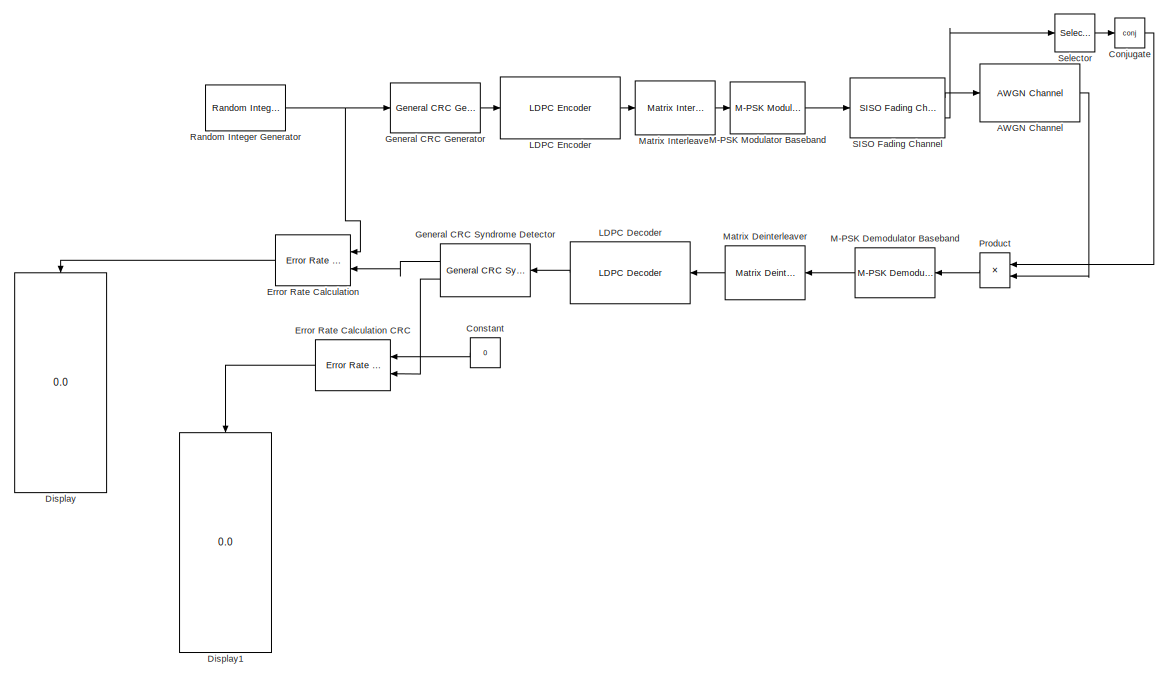
[diagram: root canvas - part 1/2, left side, full height]
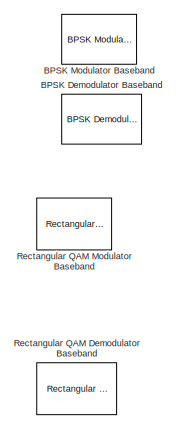
[diagram: root canvas - part 2/2, middle right region]
MODEL slx_5b4a1372acab
KIND model
CONFIG AbsTol = auto
CONFIG EnableMultiTasking = off
CONFIG FixedStep = auto
CONFIG MaxStep = auto
CONFIG MinStep = auto
CONFIG RelTol = 1e-3
CONFIG SampleTimeConstraint = Unconstrained
CONFIG Solver = FixedStepDiscrete
CONFIG SolverName = FixedStepDiscrete
CONFIG StartTime = 0.0
CONFIG StopTime = 20
BLOCK [Reference] AWGN Channel  REF=commchan3/AWGN
Channel
  Ports = [1, 1]
  SourceBlock = commchan3/AWGN\nChannel
  SourceProductBaseCode = CM
  SourceProductName = Communications System Toolbox
  SourceType = AWGN Channel
  UserDataPersistent = on
BLOCK [Reference] BPSK Demodulator Baseband  REF=commdigbbndpm3/BPSK
Demodulator
Baseband
  Commented = on
  Ports = [1, 1]
  SourceBlock = commdigbbndpm3/BPSK\nDemodulator\nBaseband
  SourceProductBaseCode = CM
  SourceProductName = Communications System Toolbox
  SourceType = BPSK Demodulator Baseband
BLOCK [Reference] BPSK Modulator Baseband  REF=commdigbbndpm3/BPSK
Modulator
Baseband
  Commented = on
  Ports = [1, 1]
  SourceBlock = commdigbbndpm3/BPSK\nModulator\nBaseband
  SourceProductBaseCode = CM
  SourceProductName = Communications System Toolbox
  SourceType = BPSK Modulator Baseband
BLOCK [Math] Conjugate
  Operator = conj
  Ports = [1, 1]
  RndMeth = Zero
BLOCK [Constant] Constant
  Value = 0
BLOCK [Display] Display
  Decimation = 1
  Ports = [1]
BLOCK [Display] Display1
  Decimation = 1
  Ports = [1]
BLOCK [Reference] Error Rate Calculation  REF=commsink2/Error Rate
Calculation
  Ports = [2, 1]
  SourceBlock = commsink2/Error Rate\nCalculation
  SourceProductBaseCode = CM
  SourceProductName = Communications System Toolbox
  SourceType = Error Rate Calculation
BLOCK [Reference] Error Rate Calculation CRC  REF=commsink2/Error Rate
Calculation
  Ports = [2, 1]
  SourceBlock = commsink2/Error Rate\nCalculation
  SourceProductBaseCode = CM
  SourceProductName = Communications System Toolbox
  SourceType = Error Rate Calculation
BLOCK [Reference] General CRC Generator  REF=commcrc2/General CRC
Generator
  Ports = [1, 1]
  SourceBlock = commcrc2/General CRC\nGenerator
  SourceProductBaseCode = CM
  SourceProductName = Communications System Toolbox
  SourceType = General CRC Generator
BLOCK [Reference] General CRC Syndrome Detector  REF=commcrc2/General CRC
Syndrome
Detector
  Ports = [1, 2]
  SourceBlock = commcrc2/General CRC\nSyndrome\nDetector
  SourceProductBaseCode = CM
  SourceProductName = Communications System Toolbox
  SourceType = General CRC Syndrome Detector
BLOCK [Reference] LDPC Decoder  REF=commblkcod2/LDPC Decoder
  Ports = [1, 1]
  SourceBlock = commblkcod2/LDPC Decoder
  SourceProductBaseCode = CM
  SourceProductName = Communications System Toolbox
  SourceType = LDPC Decoder
BLOCK [Reference] LDPC Encoder  REF=commblkcod2/LDPC Encoder
  Ports = [1, 1]
  SourceBlock = commblkcod2/LDPC Encoder
  SourceProductBaseCode = CM
  SourceProductName = Communications System Toolbox
  SourceType = LDPC Encoder
BLOCK [Reference] M-PSK Demodulator Baseband  REF=commdigbbndpm3/M-PSK
Demodulator
Baseband
  Ports = [1, 1]
  SourceBlock = commdigbbndpm3/M-PSK\nDemodulator\nBaseband
  SourceProductBaseCode = CM
  SourceProductName = Communications System Toolbox
  SourceType = M-PSK Demodulator Baseband
BLOCK [Reference] M-PSK Modulator Baseband  REF=commdigbbndpm3/M-PSK
Modulator
Baseband
  Ports = [1, 1]
  SourceBlock = commdigbbndpm3/M-PSK\nModulator\nBaseband
  SourceProductBaseCode = CM
  SourceProductName = Communications System Toolbox
  SourceType = M-PSK Modulator Baseband
BLOCK [Reference] Matrix Deinterleaver  REF=commblkintrlv2/Matrix
Deinterleaver
  Ports = [1, 1]
  SourceBlock = commblkintrlv2/Matrix\nDeinterleaver
  SourceProductBaseCode = CM
  SourceProductName = Communications System Toolbox
  SourceType = Matrix Deinterleaver
BLOCK [Reference] Matrix Interleaver  REF=commblkintrlv2/Matrix
Interleaver
  Ports = [1, 1]
  SourceBlock = commblkintrlv2/Matrix\nInterleaver
  SourceProductBaseCode = CM
  SourceProductName = Communications System Toolbox
  SourceType = Matrix Interleaver
BLOCK [Product] Product
  InputSameDT = off
  OutDataTypeStr = Inherit: Inherit via internal rule
  Ports = [2, 1]
  RndMeth = Floor
  SaturateOnIntegerOverflow = off
BLOCK [Reference] Random Integer Generator  REF=commrandsrc3/Random Integer
Generator
  Ports = [0, 1]
  SourceBlock = commrandsrc3/Random Integer\nGenerator
  SourceProductBaseCode = CM
  SourceProductName = Communications System Toolbox
  SourceType = Random Integer Generator
BLOCK [Reference] Rectangular QAM Demodulator Baseband  REF=commdigbbndam3/Rectangular QAM
Demodulator
Baseband
  Commented = on
  Ports = [1, 1]
  SourceBlock = commdigbbndam3/Rectangular QAM\nDemodulator\nBaseband
  SourceProductBaseCode = CM
  SourceProductName = Communications System Toolbox
  SourceType = Rectangular QAM Demodulator Baseband
BLOCK [Reference] Rectangular QAM Modulator Baseband  REF=commdigbbndam3/Rectangular QAM
Modulator
Baseband
  Commented = on
  Ports = [1, 1]
  SourceBlock = commdigbbndam3/Rectangular QAM\nModulator\nBaseband
  SourceProductBaseCode = CM
  SourceProductName = Communications System Toolbox
  SourceType = Rectangular QAM Modulator Baseband
BLOCK [Reference] SISO Fading Channel  REF=commchan3/SISO Fading Channel
  Ports = [1, 2]
  SourceBlock = commchan3/SISO Fading Channel
  SourceProductBaseCode = CM
  SourceProductName = Communications System Toolbox
  SourceType = SISO Fading Channel
BLOCK [Selector] Selector
  IndexOptions = Select all,Index vector (dialog)
  Indices = 1,1
  InputPortWidth = 3
  NumberOfDimensions = 2
  OutputSizes = 1,1
  Ports = [1, 1]
LINE AWGN Channel:1 -> Product:2
LINE Conjugate:1 -> Product:1
LINE Constant:1 -> Error Rate Calculation CRC:1
LINE Error Rate Calculation CRC:1 -> Display1:1
LINE Error Rate Calculation:1 -> Display:1
LINE General CRC Generator:1 -> LDPC Encoder:1
LINE General CRC Syndrome Detector:1 -> Error Rate Calculation:2
LINE General CRC Syndrome Detector:2 -> Error Rate Calculation CRC:2
LINE LDPC Decoder:1 -> General CRC Syndrome Detector:1
LINE LDPC Encoder:1 -> Matrix Interleaver:1
LINE M-PSK Demodulator Baseband:1 -> Matrix Deinterleaver:1
LINE M-PSK Modulator Baseband:1 -> SISO Fading Channel:1
LINE Matrix Deinterleaver:1 -> LDPC Decoder:1
LINE Matrix Interleaver:1 -> M-PSK Modulator Baseband:1
LINE Product:1 -> M-PSK Demodulator Baseband:1
NET Random Integer Generator:1 -> Error Rate Calculation:1, General CRC Generator:1
LINE SISO Fading Channel:1 -> AWGN Channel:1
LINE SISO Fading Channel:2 -> Selector:1
LINE Selector:1 -> Conjugate:1
note: NET lines group one-source signal fan-out (src -> all destinations, sorted); 1:1 wires keep LINE
